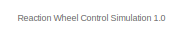
[diagram: root canvas - part 1/3, top center region]
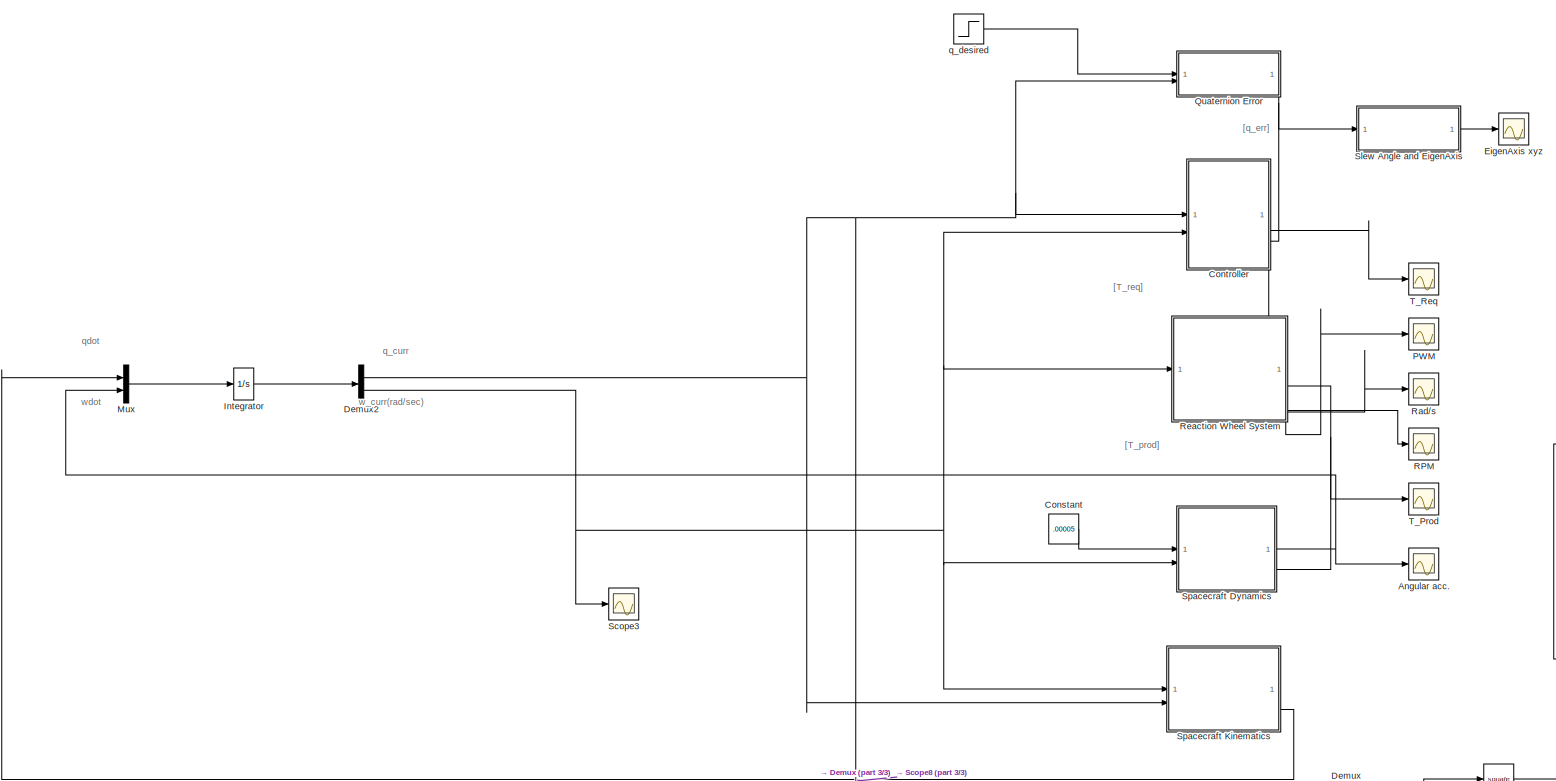
[diagram: root canvas - part 2/3, full width, middle band]
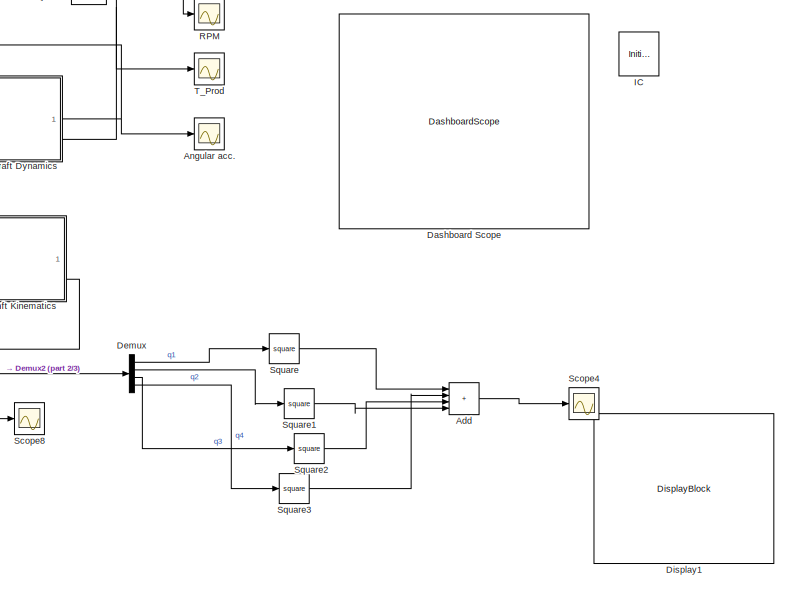
[diagram: root canvas - part 3/3, bottom right region]
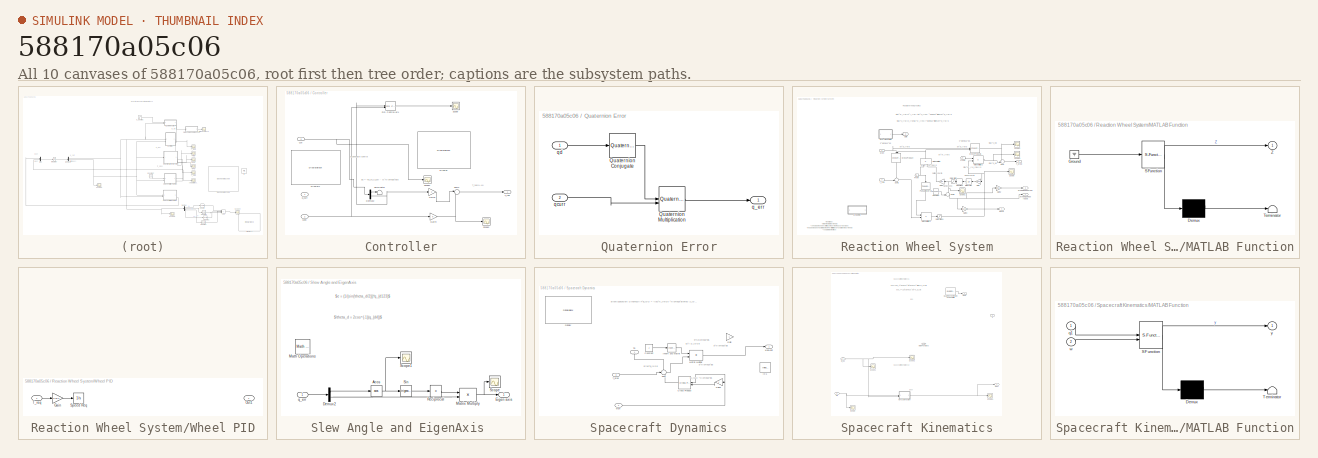
[diagram: thumbnail index - all 10 canvases of the model, root first then tree order]
MODEL slx_588170a05c06
KIND model
CONFIG AbsTol = auto
CONFIG EnableMultiTasking = off
CONFIG FixedStep = auto
CONFIG MaxStep = 0.01
CONFIG MinStep = auto
CONFIG RelTol = 1e-3
CONFIG SampleTimeConstraint = Unconstrained
CONFIG SolverName = ode45
CONFIG StartTime = 0.0
CONFIG StopTime = 100
WORKSPACE source: mxarray member
WORKSPACE J: Simulink.Parameter (value not decoded)
WORKSPACE Jscinv: Simulink.Parameter (value not decoded)
WORKSPACE Td: Simulink.Parameter (value not decoded)
WORKSPACE Var = 0
WORKSPACE Z: Simulink.Parameter (value not decoded)
WORKSPACE c: Simulink.Parameter (value not decoded)
WORKSPACE jw: Simulink.Parameter (value not decoded)
WORKSPACE k: Simulink.Parameter (value not decoded)
WORKSPACE qd: Simulink.Parameter (value not decoded)
WORKSPACE qd1: Simulink.Parameter (value not decoded)
BLOCK [Sum] Add
  IconShape = rectangular
  Inputs = ++++
BLOCK [Scope] Angular acc.
  Floating = off
  NumInputPorts = 1
  ScopeSpecificationString = Simulink.scopes.TimeScopeBlockCfg('CurrentConfiguration', extmgr.ConfigurationSet(extmgr.Configuration('Core','General UI',true),extmgr.Configuration('Core','Source UI',true),extmgr.Configuration('Sources','WiredSimulink',true,'DataLoggingVariableName','ScopeData3'),extmgr.Configuration('Visuals','Time Domain',true,'SerializedDisplays',{struct('MinYLimReal','-3.33382','MaxYLimReal','2.23641','YLab...<+1428ch>
BLOCK [Constant] Constant
  Value = .00005
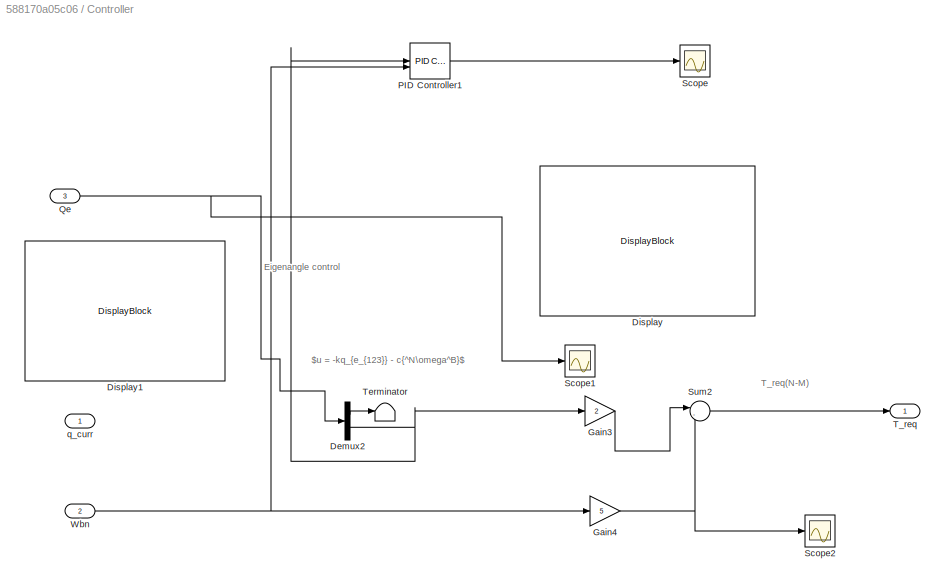
BLOCK [SubSystem] Controller
  PortSchema = {"entries":[{"content":{"sides":[{"content":{"connectorIds":["In1","In2"]},"type":"ConnectorPlacement.EquallySpacedRectSide","uuid":"a2df5b41-9ef4-4969-80d2-7b09358407cc"},{"content":{"side":"RIGHT"},"type":"ConnectorPlacement.EquallySpacedRectSide","uuid":"1e6ea160-360b-4529-9fd4-0e8e5500d5a4"},{"content":{"connectorIds":["In3"],"side":"TOP"},"type":"ConnectorPlacement.EquallySpacedRectSide","uui...<+377ch>
BLOCK [Demux] Controller/Demux2
  Outputs = [1 3]
BLOCK [DisplayBlock] Controller/Display
  LabelPosition = Hide
  Transparency = 1
BLOCK [DisplayBlock] Controller/Display1
  LabelPosition = Hide
  Transparency = 1
BLOCK [Gain] Controller/Gain3
  Gain = 2
BLOCK [Gain] Controller/Gain4
  Gain = 5
BLOCK [Reference] Controller/PID Controller1  REF=slpidlib/PID Controller
  LibrarySourceBlock = simulink/Continuous/PID Controller
  SourceBlock = slpidlib/PID Controller
  SourceType = PID 1dof
BLOCK [Inport] Controller/Qe
  Port = 3
BLOCK [Scope] Controller/Scope
  Floating = off
  NumInputPorts = 1
  ScopeSpecificationString = Simulink.scopes.TimeScopeBlockCfg('CurrentConfiguration', extmgr.ConfigurationSet(extmgr.Configuration('Core','General UI',true),extmgr.Configuration('Core','Source UI',true),extmgr.Configuration('Sources','WiredSimulink',true,'DataLoggingVariableName','ScopeData1'),extmgr.Configuration('Visuals','Time Domain',true,'SerializedDisplays',{struct('MinYLimReal','-6471.85061','MaxYLimReal','6837.02411'...<+1471ch>  <repeated x3 — deduplicated; at blocks: Scope, Scope1, Scope2>
BLOCK [Scope] Controller/Scope1
  Floating = off
  NumInputPorts = 1
BLOCK [Scope] Controller/Scope2
  Floating = off
  NumInputPorts = 1
BLOCK [Sum] Controller/Sum2
  Inputs = |--
BLOCK [Outport] Controller/T_req
BLOCK [Terminator] Controller/Terminator
BLOCK [Inport] Controller/Wbn
  Port = 2
BLOCK [Inport] Controller/q_curr
BLOCK [DashboardScope] Dashboard Scope
BLOCK [Demux] Demux
  Outputs = [1 1 1 1]
BLOCK [Demux] Demux2
  Outputs = [4 3]
BLOCK [DisplayBlock] Display1
  LabelPosition = Hide
  Transparency = 1
BLOCK [Scope] EigenAxis xyz
  Floating = off
  NumInputPorts = 1
  ScopeSpecificationString = Simulink.scopes.TimeScopeBlockCfg('CurrentConfiguration', extmgr.ConfigurationSet(extmgr.Configuration('Core','General UI',true),extmgr.Configuration('Core','Source UI',true),extmgr.Configuration('Sources','WiredSimulink',true,'DataLoggingVariableName','ScopeData3'),extmgr.Configuration('Visuals','Time Domain',true,'SerializedDisplays',{struct('MinYLimReal','-1.24503','MaxYLimReal','1.24945','YLab...<+1446ch>
BLOCK [InitialCondition] IC
  Commented = on
  Value = [1 0 0 0]
BLOCK [Integrator] Integrator
  ContinuousStateAttributes = 'quaterninion'
  InitialCondition = [0;0;1;0; 1; 2; 0]
  LowerSaturationLimit = -1
  UpperSaturationLimit = 1
BLOCK [Mux] Mux
  DisplayOption = bar
  Inputs = 2
BLOCK [Scope] PWM
  Floating = off
  NumInputPorts = 1
  ScopeSpecificationString = Simulink.scopes.TimeScopeBlockCfg('CurrentConfiguration', extmgr.ConfigurationSet(extmgr.Configuration('Core','General UI',true),extmgr.Configuration('Core','Source UI',true),extmgr.Configuration('Sources','WiredSimulink',true,'DataLoggingVariableName','ScopeData1'),extmgr.Configuration('Visuals','Time Domain',true,'SerializedDisplays',{struct('MinYLimReal','119.61864','MaxYLimReal','134.61864','Y...<+1516ch>
BLOCK [SubSystem] Quaternion Error
  PortSchema = {"entries":[{"content":{"sides":[{"content":{"connectorIds":["In1","In2"]},"type":"ConnectorPlacement.EquallySpacedRectSide","uuid":"2003ebe1-c813-4308-941a-f0b0b97b1ef5"},{"content":{"side":"RIGHT"},"type":"ConnectorPlacement.EquallySpacedRectSide","uuid":"4198199e-7f1d-471e-ae3c-0ca36f291b1d"},{"content":{"side":"TOP"},"type":"ConnectorPlacement.EquallySpacedRectSide","uuid":"ffd6eb4d-f38c-4a17-...<+354ch>
BLOCK [Reference] Quaternion Error/Quaternion Conjugate  REF=aerolibutil/Quaternion
Conjugate
  SourceBlock = aerolibutil/Quaternion\nConjugate
  SourceType = Quaternion Conjugate
BLOCK [Reference] Quaternion Error/Quaternion Multiplication  REF=aerolibutil/Quaternion
Multiplication
  SourceBlock = aerolibutil/Quaternion\nMultiplication
  SourceType = Quaternion Multiplication
BLOCK [Outport] Quaternion Error/q_err
BLOCK [Inport] Quaternion Error/qcurr
  Port = 2
BLOCK [Inport] Quaternion Error/qd
BLOCK [Scope] RPM
  Floating = off
  NumInputPorts = 1
  ScopeSpecificationString = Simulink.scopes.TimeScopeBlockCfg('CurrentConfiguration', extmgr.ConfigurationSet(extmgr.Configuration('Core','General UI',true),extmgr.Configuration('Core','Source UI',true),extmgr.Configuration('Sources','WiredSimulink',true,'DataLoggingVariableName','ScopeData1'),extmgr.Configuration('Visuals','Time Domain',true,'SerializedDisplays',{struct('MinYLimReal','12050.41657','MaxYLimReal','14652.51774...<+1573ch>
BLOCK [Scope] Rad//s
  Floating = off
  NumInputPorts = 1
  ScopeSpecificationString = Simulink.scopes.TimeScopeBlockCfg('CurrentConfiguration', extmgr.ConfigurationSet(extmgr.Configuration('Core','General UI',true),extmgr.Configuration('Core','Source UI',true),extmgr.Configuration('Sources','WiredSimulink',true,'DataLoggingVariableName','ScopeData1'),extmgr.Configuration('Visuals','Time Domain',true,'SerializedDisplays',{struct('MinYLimReal','1410.025','MaxYLimReal','1601.775','YLa...<+1503ch>
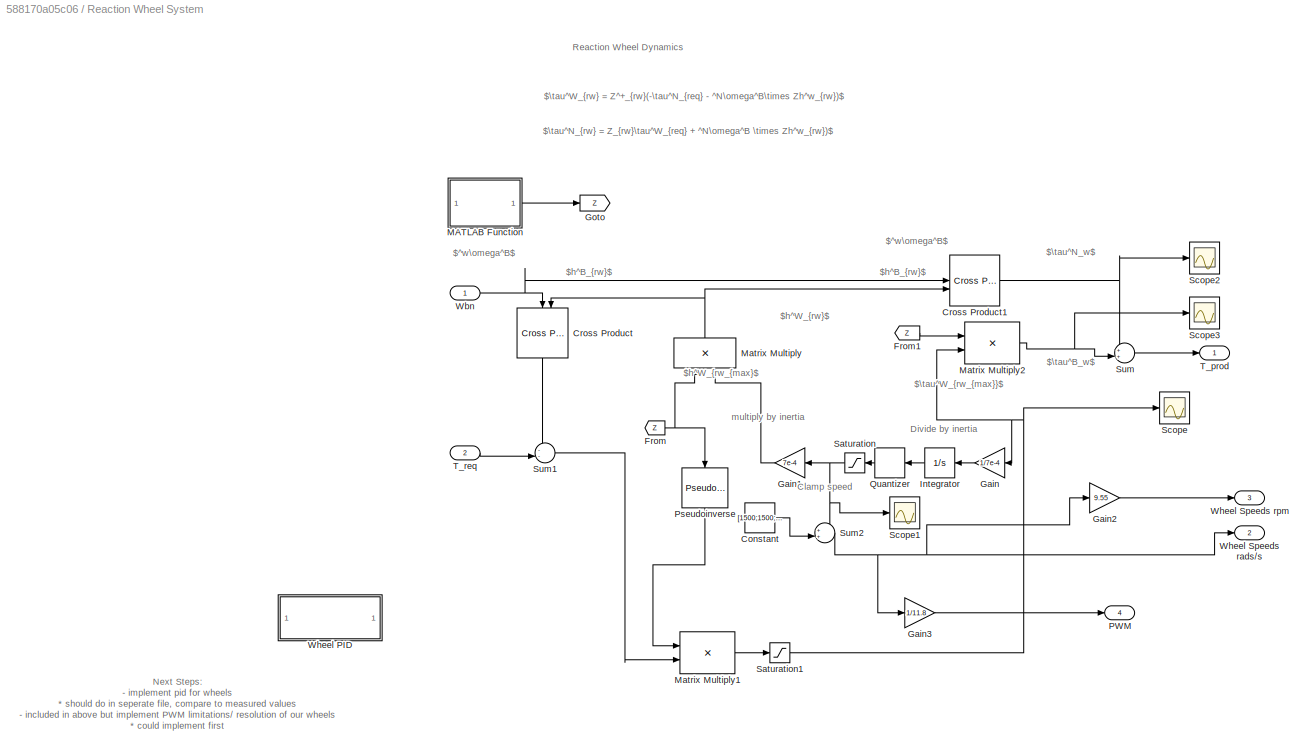
BLOCK [SubSystem] Reaction Wheel System
  PortSchema = {"entries":[{"content":{"sides":[{"content":{"connectorIds":["In1"]},"type":"ConnectorPlacement.EquallySpacedRectSide","uuid":"5c21a421-5ce3-4a1e-942c-9be5be815241"},{"content":{"side":"RIGHT"},"type":"ConnectorPlacement.EquallySpacedRectSide","uuid":"ff507b31-edec-4a81-bae3-4543f488c8f2"},{"content":{"connectorIds":["In2"],"side":"TOP"},"type":"ConnectorPlacement.EquallySpacedRectSide","uuid":"a4...<+392ch>
BLOCK [Constant] Reaction Wheel System/Constant
  Value = [1500;1500;1500;1500]
BLOCK [Reference] Reaction Wheel System/Cross Product  REF=matrix_library/Cross Product
  LibrarySourceBlock = simulink/Matrix\nOperations/Cross Product
  NameLocation = left
  SourceBlock = matrix_library/Cross Product
  SourceType = CrossProduct
BLOCK [Reference] Reaction Wheel System/Cross Product1  REF=matrix_library/Cross Product
  LibrarySourceBlock = simulink/Matrix\nOperations/Cross Product
  SourceBlock = matrix_library/Cross Product
  SourceType = CrossProduct
BLOCK [From] Reaction Wheel System/From
  GotoTag = Z
BLOCK [From] Reaction Wheel System/From1
  GotoTag = Z
BLOCK [Gain] Reaction Wheel System/Gain
  Gain = 1/7e-4
  NameLocation = top
BLOCK [Gain] Reaction Wheel System/Gain1
  Gain = 7e-4
BLOCK [Gain] Reaction Wheel System/Gain2
  Gain = 9.55
  NameLocation = top
BLOCK [Gain] Reaction Wheel System/Gain3
  Gain = 1/11.8
  NameLocation = top
BLOCK [Goto] Reaction Wheel System/Goto
  GotoTag = Z
BLOCK [Integrator] Reaction Wheel System/Integrator
  NameLocation = top
BLOCK [SubSystem] Reaction Wheel System/MATLAB Function
  ErrorFcn = Stateflow.Translate.translate
  LibrarySourceBlock = simulink/User-Defined\nFunctions/MATLAB Function
  PermitHierarchicalResolution = ExplicitOnly
  SFBlockType = MATLAB Function
  TreatAsAtomicUnit = on
BLOCK [Demux] Reaction Wheel System/MATLAB Function/ Demux 
  Outputs = 1
BLOCK [Ground] Reaction Wheel System/MATLAB Function/ Ground 
BLOCK [S-Function] Reaction Wheel System/MATLAB Function/ SFunction 
  EnableBusSupport = on
  FunctionName = sf_sfun
  PortCounts = [1 2]
  SFcnIsStateOwnerBlock = off
  SFunctionDeploymentMode = off
  Tag = Stateflow S-Function 2
BLOCK [Terminator] Reaction Wheel System/MATLAB Function/ Terminator 
BLOCK [Outport] Reaction Wheel System/MATLAB Function/Z
BLOCK [Product] Reaction Wheel System/Matrix Multiply
  Multiplication = Matrix(*)
  NameLocation = right
BLOCK [Product] Reaction Wheel System/Matrix Multiply1
  Multiplication = Matrix(*)
BLOCK [Product] Reaction Wheel System/Matrix Multiply2
  Multiplication = Matrix(*)
BLOCK [Outport] Reaction Wheel System/PWM
  Port = 4
BLOCK [Reference] Reaction Wheel System/Pseudoinverse  REF=dspinverses/Pseudoinverse
  NameLocation = left
  SourceBlock = dspinverses/Pseudoinverse
  SourceType = Pseudoinverse
BLOCK [Quantizer] Reaction Wheel System/Quantizer
  NameLocation = top
  QuantizationInterval = 11.8
BLOCK [Saturate] Reaction Wheel System/Saturation
  LowerLimit = -1500
  NameLocation = top
  UpperLimit = 1500
BLOCK [Saturate] Reaction Wheel System/Saturation1
  LowerLimit = -.003
  UpperLimit = .003
BLOCK [Scope] Reaction Wheel System/Scope
  Floating = off
  NumInputPorts = 1
  ScopeSpecificationString = Simulink.scopes.TimeScopeBlockCfg('CurrentConfiguration', extmgr.ConfigurationSet(extmgr.Configuration('Core','General UI',true),extmgr.Configuration('Core','Source UI',true),extmgr.Configuration('Sources','WiredSimulink',true,'DataLoggingVariableName','ScopeData8'),extmgr.Configuration('Visuals','Time Domain',true,'SerializedDisplays',{struct('MinYLimReal','-0.00375','MaxYLimReal','0.00375','YLab...<+1453ch>
BLOCK [Scope] Reaction Wheel System/Scope1
  Floating = off
  NumInputPorts = 1
  ScopeSpecificationString = Simulink.scopes.TimeScopeBlockCfg('CurrentConfiguration', extmgr.ConfigurationSet(extmgr.Configuration('Core','General UI',true),extmgr.Configuration('Core','Source UI',true),extmgr.Configuration('Sources','WiredSimulink',true,'DataLoggingVariableName','ScopeData8'),extmgr.Configuration('Visuals','Time Domain',true,'SerializedDisplays',{struct('MinYLimReal','-89.975','MaxYLimReal','101.775','YLabe...<+1445ch>
BLOCK [Scope] Reaction Wheel System/Scope2
  Floating = off
  NumInputPorts = 1
  ScopeSpecificationString = Simulink.scopes.TimeScopeBlockCfg('CurrentConfiguration', extmgr.ConfigurationSet(extmgr.Configuration('Core','General UI',true),extmgr.Configuration('Core','Source UI',true),extmgr.Configuration('Sources','WiredSimulink',true,'DataLoggingVariableName','ScopeData8'),extmgr.Configuration('Visuals','Time Domain',true,'SerializedDisplays',{struct('MinYLimReal','-0.00375','MaxYLimReal','0.00375','YLab...<+1420ch>
BLOCK [Scope] Reaction Wheel System/Scope3
  Floating = off
  NumInputPorts = 1
  ScopeSpecificationString = Simulink.scopes.TimeScopeBlockCfg('CurrentConfiguration', extmgr.ConfigurationSet(extmgr.Configuration('Core','General UI',true),extmgr.Configuration('Core','Source UI',true),extmgr.Configuration('Sources','WiredSimulink',true,'DataLoggingVariableName','ScopeData8'),extmgr.Configuration('Visuals','Time Domain',true,'SerializedDisplays',{struct('MinYLimReal','-0.00375','MaxYLimReal','0.00375','YLab...<+1420ch>
BLOCK [Sum] Reaction Wheel System/Sum
  Inputs = ++|
BLOCK [Sum] Reaction Wheel System/Sum1
  Inputs = --|
BLOCK [Sum] Reaction Wheel System/Sum2
  Inputs = ++|
BLOCK [Outport] Reaction Wheel System/T_prod
BLOCK [Inport] Reaction Wheel System/T_req
  Port = 2
BLOCK [Inport] Reaction Wheel System/Wbn
BLOCK [SubSystem] Reaction Wheel System/Wheel PID
BLOCK [Gain] Reaction Wheel System/Wheel PID/Gain
  Gain = 1/7e-4
BLOCK [Outport] Reaction Wheel System/Wheel PID/Out1
BLOCK [Integrator] Reaction Wheel System/Wheel PID/Speed Req
BLOCK [Inport] Reaction Wheel System/Wheel PID/T_req
BLOCK [Outport] Reaction Wheel System/Wheel Speeds rads//s
  Port = 2
BLOCK [Outport] Reaction Wheel System/Wheel Speeds rpm
  Port = 3
BLOCK [Scope] Scope3
  Floating = off
  NumInputPorts = 1
  ScopeSpecificationString = Simulink.scopes.TimeScopeBlockCfg('CurrentConfiguration', extmgr.ConfigurationSet(extmgr.Configuration('Core','General UI',true),extmgr.Configuration('Core','Source UI',true),extmgr.Configuration('Sources','WiredSimulink',true,'DataLoggingVariableName','ScopeData1'),extmgr.Configuration('Visuals','Time Domain',true,'SerializedDisplays',{struct('MinYLimReal','-3.47422','MaxYLimReal','11.49714','YLa...<+1432ch>
BLOCK [Scope] Scope4
  Floating = off
  NumInputPorts = 1
  ScopeSpecificationString = Simulink.scopes.TimeScopeBlockCfg('CurrentConfiguration', extmgr.ConfigurationSet(extmgr.Configuration('Core','General UI',true),extmgr.Configuration('Core','Source UI',true),extmgr.Configuration('Sources','WiredSimulink',true,'DataLoggingVariableName','ScopeData2'),extmgr.Configuration('Visuals','Time Domain',true,'SerializedDisplays',{struct('MinYLimReal','0.99999999999991','MaxYLimReal','1.0000...<+1432ch>
BLOCK [Scope] Scope8
  Floating = off
  NumInputPorts = 1
  ScopeSpecificationString = Simulink.scopes.TimeScopeBlockCfg('CurrentConfiguration', extmgr.ConfigurationSet(extmgr.Configuration('Core','General UI',true,'FigureColor',[1 1 1]),extmgr.Configuration('Core','Source UI',true),extmgr.Configuration('Sources','WiredSimulink',true,'DataLoggingVariableName','ScopeData4','DataLogging',true,'DataLoggingSaveFormat','StructureWithTime'),extmgr.Configuration('Visuals','Time Domain',tru...<+4502ch>
BLOCK [SubSystem] Slew Angle and EigenAxis 
BLOCK [Trigonometry] Slew Angle and EigenAxis /Acos
  Operator = acos
BLOCK [Demux] Slew Angle and EigenAxis /Demux2
  Outputs = [1 3]
BLOCK [Outport] Slew Angle and EigenAxis /Eigen axis
BLOCK [Reference] Slew Angle and EigenAxis /Math Operations  REF=simulink/Quick Insert/Math
Operations
  SourceBlock = simulink/Quick Insert/Math\nOperations
BLOCK [Product] Slew Angle and EigenAxis /Matrix Multiply
BLOCK [Product] Slew Angle and EigenAxis /Reciprocal
  Inputs = /
BLOCK [Scope] Slew Angle and EigenAxis /Scope
  Floating = off
  NumInputPorts = 1
  ScopeSpecificationString = Simulink.scopes.TimeScopeBlockCfg('CurrentConfiguration', extmgr.ConfigurationSet(extmgr.Configuration('Core','General UI',true),extmgr.Configuration('Core','Source UI',true),extmgr.Configuration('Sources','WiredSimulink',true,'DataLoggingVariableName','ScopeData1'),extmgr.Configuration('Visuals','Time Domain',true,'SerializedDisplays',{struct('MinYLimReal','-1.04811','MaxYLimReal','0.63575','YLab...<+1416ch>
BLOCK [Scope] Slew Angle and EigenAxis /Scope1
  Floating = off
  NumInputPorts = 1
  ScopeSpecificationString = Simulink.scopes.TimeScopeBlockCfg('CurrentConfiguration', extmgr.ConfigurationSet(extmgr.Configuration('Core','General UI',true),extmgr.Configuration('Core','Source UI',true),extmgr.Configuration('Sources','WiredSimulink',true,'DataLoggingVariableName','ScopeData2'),extmgr.Configuration('Visuals','Time Domain',true,'SerializedDisplays',{struct('MinYLimReal','-0.25802','MaxYLimReal','2.37593','YLab...<+1363ch>
BLOCK [Trigonometry] Slew Angle and EigenAxis /Sin
BLOCK [Inport] Slew Angle and EigenAxis /q_err
BLOCK [SubSystem] Spacecraft Dynamics
  PortSchema = {"entries":[{"content":{"sides":[{"content":{"connectorIds":["In1","In2"]},"type":"ConnectorPlacement.EquallySpacedRectSide","uuid":"a2df5b41-9ef4-4969-80d2-7b09358407cc"},{"content":{"connectorIds":["Out1"],"side":"RIGHT"},"type":"ConnectorPlacement.EquallySpacedRectSide","uuid":"1e6ea160-360b-4529-9fd4-0e8e5500d5a4"},{"content":{"connectorIds":["In3"],"side":"TOP"},"type":"ConnectorPlacement.Equ...<+251ch>
BLOCK [Constant] Spacecraft Dynamics/Constant
  Value = J
BLOCK [Reference] Spacecraft Dynamics/Cross Product  REF=matrix_library/Cross Product
  LibrarySourceBlock = simulink/Matrix\nOperations/Cross Product
  NameLocation = top
  SourceBlock = matrix_library/Cross Product
  SourceType = CrossProduct
BLOCK [DisplayBlock] Spacecraft Dynamics/Display
  LabelPosition = Hide
  Transparency = 1
BLOCK [Gain] Spacecraft Dynamics/Gain
  Gain = -1
BLOCK [Gain] Spacecraft Dynamics/Gain1
  Gain = J
  Multiplication = Matrix(K*u)
  NameLocation = top
BLOCK [InitialCondition] Spacecraft Dynamics/IC1
  Commented = on
  NameLocation = right
  Value = [0; 2; 0]
BLOCK [Reference] Spacecraft Dynamics/Invert 3x3 Matrix  REF=aerolibutil/Invert 
3x3 Matrix
  SourceBlock = aerolibutil/Invert \n3x3 Matrix
  SourceType = Invert 3x3 Matrix
BLOCK [Product] Spacecraft Dynamics/Matrix Multiply
  Multiplication = Matrix(*)
BLOCK [Sum] Spacecraft Dynamics/Sum
  Inputs = +--
BLOCK [Inport] Spacecraft Dynamics/T_prod
  Port = 3
BLOCK [Inport] Spacecraft Dynamics/Td
  NameLocation = left
BLOCK [Outport] Spacecraft Dynamics/wBNdot
BLOCK [Inport] Spacecraft Dynamics/wbn
  Port = 2
BLOCK [SubSystem] Spacecraft Kinematics
BLOCK [Outport] Spacecraft Kinematics/DCM
BLOCK [SubSystem] Spacecraft Kinematics/MATLAB Function
  ErrorFcn = Stateflow.Translate.translate
  LibrarySourceBlock = simulink/User-Defined\nFunctions/MATLAB Function
  PermitHierarchicalResolution = ExplicitOnly
  SFBlockType = MATLAB Function
  TreatAsAtomicUnit = on
BLOCK [Demux] Spacecraft Kinematics/MATLAB Function/ Demux 
  Outputs = 1
BLOCK [S-Function] Spacecraft Kinematics/MATLAB Function/ SFunction 
  EnableBusSupport = on
  FunctionName = sf_sfun
  PortCounts = [2 2]
  SFcnIsStateOwnerBlock = off
  SFunctionDeploymentMode = off
  Tag = Stateflow S-Function 3
BLOCK [Terminator] Spacecraft Kinematics/MATLAB Function/ Terminator 
BLOCK [Inport] Spacecraft Kinematics/MATLAB Function/q1
BLOCK [Inport] Spacecraft Kinematics/MATLAB Function/w
  Port = 2
BLOCK [Outport] Spacecraft Kinematics/MATLAB Function/y
BLOCK [Math] Spacecraft Kinematics/Math Function3
  Commented = on
  Operator = square
BLOCK [Reference] Spacecraft Kinematics/Quaternions to Direction Cosine Matrix  REF=sharedtransform/Quaternions to 
Direction Cosine Matrix
  Commented = on
  LibrarySourceBlock = aerolibtransform2/Quaternions to \nDirection Cosine Matrix
  SourceBlock = sharedtransform/Quaternions to \nDirection Cosine Matrix
  SourceType = Quaternion2DCM
BLOCK [Scope] Spacecraft Kinematics/Scope
  Floating = off
  NumInputPorts = 1
  ScopeSpecificationString = Simulink.scopes.TimeScopeBlockCfg
BLOCK [Scope] Spacecraft Kinematics/Scope1
  Floating = off
  NumInputPorts = 1
  ScopeSpecificationString = Simulink.scopes.TimeScopeBlockCfg('CurrentConfiguration', extmgr.ConfigurationSet(extmgr.Configuration('Core','General UI',true),extmgr.Configuration('Core','Source UI',true),extmgr.Configuration('Sources','WiredSimulink',true,'DataLoggingVariableName','ScopeData1'),extmgr.Configuration('Visuals','Time Domain',true,'SerializedDisplays',{struct('MinYLimReal','-0.09803','MaxYLimReal','0.15343','YLab...<+1449ch>
BLOCK [Scope] Spacecraft Kinematics/Scope2
  Floating = off
  NumInputPorts = 1
  ScopeSpecificationString = Simulink.scopes.TimeScopeBlockCfg('CurrentConfiguration', extmgr.ConfigurationSet(extmgr.Configuration('Core','General UI',true),extmgr.Configuration('Core','Source UI',true),extmgr.Configuration('Sources','WiredSimulink',true,'DataLoggingVariableName','ScopeData2'),extmgr.Configuration('Visuals','Time Domain',true,'SerializedDisplays',{struct('MinYLimReal','-0.09803','MaxYLimReal','0.15343','YLab...<+1449ch>
BLOCK [Scope] Spacecraft Kinematics/Scope4
  Floating = off
  NumInputPorts = 1
  ScopeSpecificationString = Simulink.scopes.TimeScopeBlockCfg('CurrentConfiguration', extmgr.ConfigurationSet(extmgr.Configuration('Core','General UI',true),extmgr.Configuration('Core','Source UI',true),extmgr.Configuration('Sources','WiredSimulink',true,'DataLoggingVariableName','ScopeData1'),extmgr.Configuration('Visuals','Time Domain',true,'SerializedDisplays',{struct('MinYLimReal','-0.03628','MaxYLimReal','0.04966','YLab...<+1502ch>
BLOCK [Inport] Spacecraft Kinematics/W_bo
BLOCK [Outport] Spacecraft Kinematics/q
  Port = 2
  PortDimensions = [1 4]
BLOCK [Outport] Spacecraft Kinematics/qdot
  Port = 3
  PortDimensions = [4 1]
BLOCK [Inport] Spacecraft Kinematics/qin
  Port = 2
BLOCK [Math] Square
  Operator = square
BLOCK [Math] Square1
  Operator = square
BLOCK [Math] Square2
  Operator = square
BLOCK [Math] Square3
  Operator = square
BLOCK [Scope] T_Prod
  Floating = off
  NumInputPorts = 1
  ScopeSpecificationString = Simulink.scopes.TimeScopeBlockCfg('CurrentConfiguration', extmgr.ConfigurationSet(extmgr.Configuration('Core','General UI',true),extmgr.Configuration('Core','Source UI',true),extmgr.Configuration('Sources','WiredSimulink',true,'DataLoggingVariableName','ScopeData3'),extmgr.Configuration('Visuals','Time Domain',true,'SerializedDisplays',{struct('MinYLimReal','-0.01842','MaxYLimReal','0.02482','YLab...<+1517ch>
BLOCK [Scope] T_Req
  Floating = off
  NumInputPorts = 1
  ScopeSpecificationString = Simulink.scopes.TimeScopeBlockCfg('CurrentConfiguration', extmgr.ConfigurationSet(extmgr.Configuration('Core','General UI',true),extmgr.Configuration('Core','Source UI',true),extmgr.Configuration('Sources','WiredSimulink',true,'DataLoggingVariableName','ScopeData2'),extmgr.Configuration('Visuals','Time Domain',true,'SerializedDisplays',{struct('MinYLimReal','-0.00072','MaxYLimReal','0.00083','YLab...<+1407ch>
BLOCK [Step] q_desired
  After = [0; 0; sqrt(2)/2; sqrt(2)/2]
  Before = [0; -1; 0; 0]
  SampleTime = 0
  Time = 0
ANNOTATION (root): [T_prod]
ANNOTATION (root): [T_req]
ANNOTATION (root): [q_err]
ANNOTATION (root): Reaction Wheel Control Simulation 1.0
ANNOTATION (root): q_curr
ANNOTATION (root): qdot
ANNOTATION (root): w_curr(rad/sec)
ANNOTATION (root): wdot
ANNOTATION Controller: T_req(N-M)
ANNOTATION Controller: Eigenangle control
ANNOTATION Controller: $u = -kq_{e_{123}} - c{^N\omega^B}$
ANNOTATION Reaction Wheel System: Reaction Wheel Dynamics
ANNOTATION Reaction Wheel System: $\tau^N_w$
ANNOTATION Reaction Wheel System: $\tau^N_{rw} = Z_{rw}\tau^W_{req} + ^N\omega^B \times Zh^w_{rw})$
ANNOTATION Reaction Wheel System: $\tau^W_{rw_{max}}$
ANNOTATION Reaction Wheel System: $\tau^W_{rw} = Z^+_{rw}(-\tau^N_{req} - ^N\omega^B\times Zh^w_{rw})$
ANNOTATION Reaction Wheel System: $^w\omega^B$
ANNOTATION Reaction Wheel System: $h^B_{rw}$
ANNOTATION Reaction Wheel System: $h^W_{rw_{max}$
ANNOTATION Reaction Wheel System: $h^W_{rw}$
ANNOTATION Reaction Wheel System: $\tau^B_w$
ANNOTATION Reaction Wheel System: Clamp speed
ANNOTATION Reaction Wheel System: Divide by inertia
ANNOTATION Reaction Wheel System: Next Steps: - implement pid for wheels * should do in seperate file, compare to measured values - included in above but implement PWM limitations/ resolution of our wheels * could implement first
ANNOTATION Reaction Wheel System: multiply by inertia
ANNOTATION Slew Angle and EigenAxis : $\theta_d = 2cos^{-1}(q_{d4})$
ANNOTATION Slew Angle and EigenAxis : $e = (1/{sin(\theta_d/2)})*q_{d123}$
ANNOTATION Spacecraft Dynamics: $\tau^B_{s/c}$
ANNOTATION Spacecraft Dynamics: $J^{-1}_{s/c}$
ANNOTATION Spacecraft Dynamics: $J_{s/c} ^N\omega^B$
ANNOTATION Spacecraft Dynamics: $^N\omega^B$
ANNOTATION Spacecraft Dynamics: $^Nd\omega^B$
ANNOTATION Spacecraft Dynamics: $\text{Spacecraft Dynamics}\\T^B_{s/c} = -\tau^N_{rwsA}-^N\omega^B\times (J_{s/c}\ ^N\omega^B)$
ANNOTATION Spacecraft Kinematics: dq1
ANNOTATION Spacecraft Kinematics: Spacecraft Kinematics V1
ANNOTATION Spacecraft Kinematics: Spacecraft Kinematics V2
ANNOTATION Spacecraft Kinematics: $dq = 1/2(q_4 {^O\omega^B}-{^O\omega^B}\times q_{123})$
ANNOTATION Spacecraft Kinematics: $dq_4 = 1/2({^O\omega^B})^Tq_{123}$
ANNOTATION Spacecraft Kinematics: qdot
LINE Add:1 -> Scope4:1
LINE Constant:1 -> Spacecraft Dynamics:1
LINE Controller/Demux2:1 -> Controller/Terminator:1
NET Controller/Demux2:2 -> Controller/Gain3:1, Controller/PID Controller1:1
LINE Controller/Gain3:1 -> Controller/Sum2:1
NET Controller/Gain4:1 -> Controller/Scope2:1, Controller/Sum2:2
LINE Controller/PID Controller1:1 -> Controller/Scope:1
NET Controller/Qe:1 -> Controller/Demux2:1, Controller/Scope1:1
LINE Controller/Sum2:1 -> Controller/T_req:1
NET Controller/Wbn:1 -> Controller/Gain4:1, Controller/PID Controller1:2
NET Controller:1 -> Reaction Wheel System:2, T_Req:1
NET Demux2:1 -> Controller:1, Demux:1, Quaternion Error:2, Scope8:1, Spacecraft Kinematics:2
NET Demux2:2 -> Controller:2, Reaction Wheel System:1, Scope3:1, Spacecraft Dynamics:2, Spacecraft Kinematics:1
LINE Demux:1 -> Square:1
LINE Demux:2 -> Square1:1
LINE Demux:3 -> Square2:1
LINE Demux:4 -> Square3:1
LINE Integrator:1 -> Demux2:1
LINE Mux:1 -> Integrator:1
LINE Quaternion Error/Quaternion Conjugate:1 -> Quaternion Error/Quaternion Multiplication:1
LINE Quaternion Error/Quaternion Multiplication:1 -> Quaternion Error/q_err:1
LINE Quaternion Error/qcurr:1 -> Quaternion Error/Quaternion Multiplication:2
LINE Quaternion Error/qd:1 -> Quaternion Error/Quaternion Conjugate:1
NET Quaternion Error:1 -> Controller:3, Slew Angle and EigenAxis :1
LINE Reaction Wheel System/Constant:1 -> Reaction Wheel System/Sum2:2
NET Reaction Wheel System/Cross Product1:1 -> Reaction Wheel System/Scope2:1, Reaction Wheel System/Sum:1
LINE Reaction Wheel System/Cross Product:1 -> Reaction Wheel System/Sum1:1
LINE Reaction Wheel System/From1:1 -> Reaction Wheel System/Matrix Multiply2:1
NET Reaction Wheel System/From:1 -> Reaction Wheel System/Matrix Multiply:1, Reaction Wheel System/Pseudoinverse:1
LINE Reaction Wheel System/Gain1:1 -> Reaction Wheel System/Matrix Multiply:2
LINE Reaction Wheel System/Gain2:1 -> Reaction Wheel System/Wheel Speeds rpm:1
LINE Reaction Wheel System/Gain3:1 -> Reaction Wheel System/PWM:1
LINE Reaction Wheel System/Gain:1 -> Reaction Wheel System/Integrator:1
LINE Reaction Wheel System/Integrator:1 -> Reaction Wheel System/Quantizer:1
LINE Reaction Wheel System/MATLAB Function:1 -> Reaction Wheel System/Goto:1
LINE Reaction Wheel System/Matrix Multiply1:1 -> Reaction Wheel System/Saturation1:1
NET Reaction Wheel System/Matrix Multiply2:1 -> Reaction Wheel System/Scope3:1, Reaction Wheel System/Sum:2
NET Reaction Wheel System/Matrix Multiply:1 -> Reaction Wheel System/Cross Product1:2, Reaction Wheel System/Cross Product:2
LINE Reaction Wheel System/Pseudoinverse:1 -> Reaction Wheel System/Matrix Multiply1:1
LINE Reaction Wheel System/Quantizer:1 -> Reaction Wheel System/Saturation:1
NET Reaction Wheel System/Saturation1:1 -> Reaction Wheel System/Gain:1, Reaction Wheel System/Matrix Multiply2:2, Reaction Wheel System/Scope:1
NET Reaction Wheel System/Saturation:1 -> Reaction Wheel System/Gain1:1, Reaction Wheel System/Scope1:1, Reaction Wheel System/Sum2:1
LINE Reaction Wheel System/Sum1:1 -> Reaction Wheel System/Matrix Multiply1:2
NET Reaction Wheel System/Sum2:1 -> Reaction Wheel System/Gain2:1, Reaction Wheel System/Gain3:1, Reaction Wheel System/Wheel Speeds rads//s:1
LINE Reaction Wheel System/Sum:1 -> Reaction Wheel System/T_prod:1
LINE Reaction Wheel System/T_req:1 -> Reaction Wheel System/Sum1:2
NET Reaction Wheel System/Wbn:1 -> Reaction Wheel System/Cross Product1:1, Reaction Wheel System/Cross Product:1
LINE Reaction Wheel System/Wheel PID/Gain:1 -> Reaction Wheel System/Wheel PID/Speed Req:1
LINE Reaction Wheel System/Wheel PID/T_req:1 -> Reaction Wheel System/Wheel PID/Gain:1
NET Reaction Wheel System:1 -> Spacecraft Dynamics:3, T_Prod:1
LINE Reaction Wheel System:2 -> Rad//s:1
LINE Reaction Wheel System:3 -> RPM:1
LINE Reaction Wheel System:4 -> PWM:1
NET Slew Angle and EigenAxis /Acos:1 -> Slew Angle and EigenAxis /Scope1:1, Slew Angle and EigenAxis /Sin:1
LINE Slew Angle and EigenAxis /Demux2:1 -> Slew Angle and EigenAxis /Acos:1
LINE Slew Angle and EigenAxis /Demux2:2 -> Slew Angle and EigenAxis /Matrix Multiply:2
NET Slew Angle and EigenAxis /Matrix Multiply:1 -> Slew Angle and EigenAxis /Eigen axis:1, Slew Angle and EigenAxis /Scope:1
LINE Slew Angle and EigenAxis /Reciprocal:1 -> Slew Angle and EigenAxis /Matrix Multiply:1
LINE Slew Angle and EigenAxis /Sin:1 -> Slew Angle and EigenAxis /Reciprocal:1
LINE Slew Angle and EigenAxis /q_err:1 -> Slew Angle and EigenAxis /Demux2:1
LINE Slew Angle and EigenAxis :1 -> EigenAxis xyz:1
LINE Spacecraft Dynamics/Constant:1 -> Spacecraft Dynamics/Invert 3x3 Matrix:1
LINE Spacecraft Dynamics/Cross Product:1 -> Spacecraft Dynamics/Sum:3
LINE Spacecraft Dynamics/Gain1:1 -> Spacecraft Dynamics/Cross Product:2
LINE Spacecraft Dynamics/Invert 3x3 Matrix:1 -> Spacecraft Dynamics/Matrix Multiply:1
LINE Spacecraft Dynamics/Matrix Multiply:1 -> Spacecraft Dynamics/wBNdot:1
LINE Spacecraft Dynamics/Sum:1 -> Spacecraft Dynamics/Matrix Multiply:2
LINE Spacecraft Dynamics/T_prod:1 -> Spacecraft Dynamics/Sum:2
LINE Spacecraft Dynamics/Td:1 -> Spacecraft Dynamics/Sum:1
NET Spacecraft Dynamics/wbn:1 -> Spacecraft Dynamics/Cross Product:1, Spacecraft Dynamics/Gain1:1
NET Spacecraft Dynamics:1 -> Angular acc.:1, Mux:2
NET Spacecraft Kinematics/MATLAB Function:1 -> Spacecraft Kinematics/Scope4:1, Spacecraft Kinematics/qdot:1
LINE Spacecraft Kinematics/Quaternions to Direction Cosine Matrix:1 -> Spacecraft Kinematics/DCM:1
NET Spacecraft Kinematics/W_bo:1 -> Spacecraft Kinematics/MATLAB Function:2, Spacecraft Kinematics/Scope1:1, Spacecraft Kinematics/Scope2:1
NET Spacecraft Kinematics/qin:1 -> Spacecraft Kinematics/MATLAB Function:1, Spacecraft Kinematics/Scope:1
LINE Spacecraft Kinematics:3 -> Mux:1
LINE Square1:1 -> Add:4
LINE Square2:1 -> Add:3
LINE Square3:1 -> Add:2
LINE Square:1 -> Add:1
LINE q_desired:1 -> Quaternion Error:1
note: NET lines group one-source signal fan-out (src -> all destinations, sorted); 1:1 wires keep LINE
CHART Spacecraft Kinematics/MATLAB Function states=1 transitions=1
  STATE_LABEL 'eML_blk_kernel()'
  STATE_LABEL 'SCRIPT:\nfunction y = fcn(q1, w)\nw1 = w(1);\nw2 = w(2);\nw3 = w(3);\n\nW = [0 -w1 -w2 -w3; w1 0 w3 -w2; w2 -w3 0 w1; w3 w2 -w1 0];\n\nq11 = q1(1)*0 -w1*q1(2) -w2*q1(3) -w3*q1(4);\nq12 = q1(1)*w1 + 0*q1(2) - w3*q1(3) +w2*q1(4);\nq13 = q1(1)*w2 +w3*q1(2) + 0*q1(3) - w1*q1(4);\nq14 = q1(1)*w3 - w2*q1(2) +w1*q1(3) + 0*q1(4);\n\nu1 = .5 * [q11; q12; q13; q14];\nu2 = .5 * W * q1;\ny = u2;\n'
CHART Reaction Wheel System/MATLAB Function states=1 transitions=1
  STATE_LABEL 'eML_blk_kernel()'
  STATE_LABEL 'SCRIPT:\nfunction Z = fcn\n\nZ = 1/sqrt(3)*[sqrt(2) 0 -sqrt(2) 0; 0 sqrt(2) 0 -sqrt(2); 1 1 1 1];\n'
CHART  states=0 transitions=0
CHART  states=0 transitions=0
